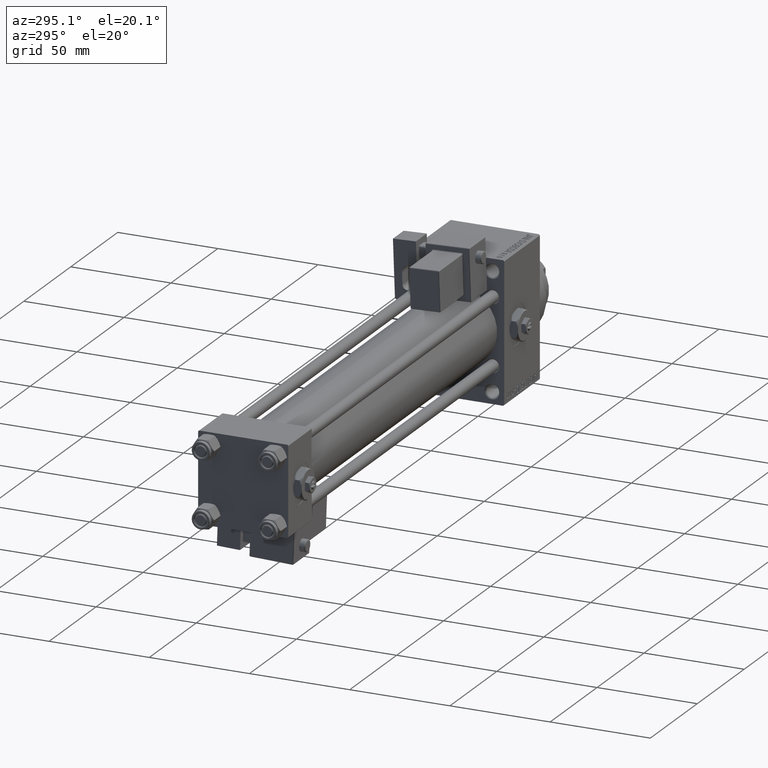
[diagram: clean part render]
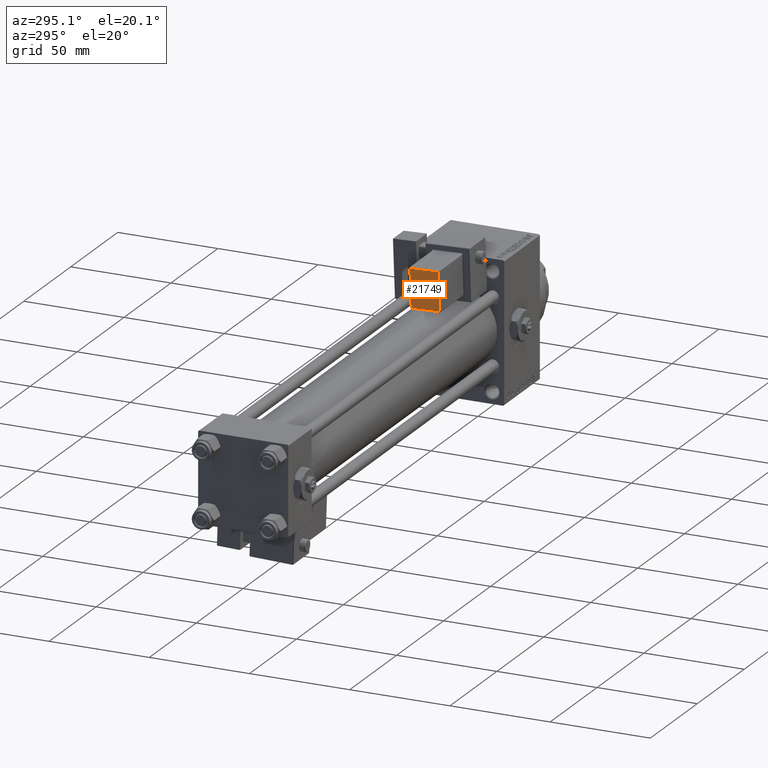
[diagram: same view with one face highlighted and labeled with its STEP entity id]
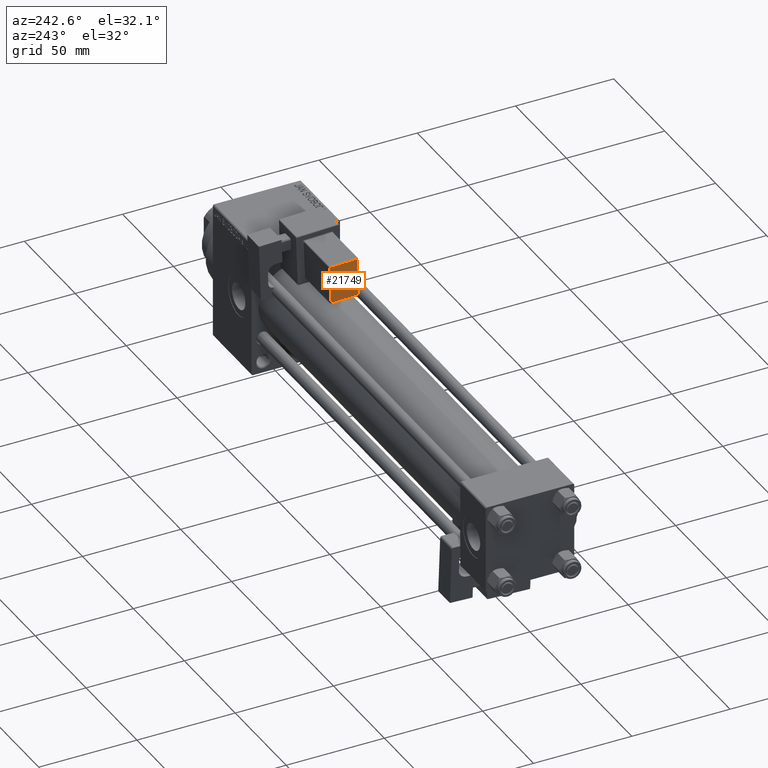
[diagram: same view with one face highlighted and labeled with its STEP entity id]
A machine part, auxiliary view. The second image highlights one B-rep face of the part: STEP entity #21749.
A second angle (auxiliary view) of the same face is appended — the face is thin or edge-on in the first view.
In plain terms, the highlighted planar face has unit normal (-1, -0, -0).
Its self-contained STEP definition (entity closure, byte-faithful):
#1070 = FACE_OUTER_BOUND ( 'NONE', #32534, .T. ) ;
#8380 = PLANE ( 'NONE',  #32879 ) ;
#9546 = DIRECTION ( 'NONE',  ( 2.006177025403372140E-32, -1.000000000000000000, -2.312964634635743450E-16 ) ) ;
#14584 = CARTESIAN_POINT ( 'NONE',  ( 33.74999999999999289, -15.75000000000000000, 22.00000000000000711 ) ) ;
#14735 = EDGE_CURVE ( 'NONE', #21920, #25783, #30178, .T. ) ;
#15312 = LINE ( 'NONE', #19986, #15407 ) ;
#15407 = VECTOR ( 'NONE', #43100, 1000.000000000000000 ) ;
#16674 = DIRECTION ( 'NONE',  ( 1.734723475976807341E-16, 0.000000000000000000, -1.000000000000000000 ) ) ;
#17330 = CARTESIAN_POINT ( 'NONE',  ( 33.75000000000000000, -15.25000000000000000, 2.500000000000008438 ) ) ;
#18359 = LINE ( 'NONE', #38377, #26818 ) ;
#18456 = CARTESIAN_POINT ( 'NONE',  ( 33.75000000000000000, -15.75000000000000000, 2.500000000000008438 ) ) ;
#19516 = EDGE_CURVE ( 'NONE', #20653, #21920, #49784, .T. ) ;
#19949 = CARTESIAN_POINT ( 'NONE',  ( 33.74999999999999289, -15.75000000000000000, 21.50000000000000355 ) ) ;
#19986 = CARTESIAN_POINT ( 'NONE',  ( 33.75000000000000000, -29.75000000000000000, 2.000000000000006661 ) ) ;
#20653 = VERTEX_POINT ( 'NONE', #36793 ) ;
#21567 = ORIENTED_EDGE ( 'NONE', *, *, #14735, .T. ) ;
#21749 = ADVANCED_FACE ( 'NONE', ( #1070 ), #8380, .T. ) ;
#21920 = VERTEX_POINT ( 'NONE', #18456 ) ;
#22053 = VECTOR ( 'NONE', #45378, 1000.000000000000000 ) ;
#25783 = VERTEX_POINT ( 'NONE', #19949 ) ;
#26818 = VECTOR ( 'NONE', #9546, 1000.000000000000000 ) ;
#29174 = ORIENTED_EDGE ( 'NONE', *, *, #19516, .T. ) ;
#29447 = EDGE_CURVE ( 'NONE', #25783, #40271, #18359, .T. ) ;
#30178 = LINE ( 'NONE', #14584, #48505 ) ;
#32534 = EDGE_LOOP ( 'NONE', ( #32578, #32988, #29174, #21567 ) ) ;
#32578 = ORIENTED_EDGE ( 'NONE', *, *, #29447, .T. ) ;
#32879 = AXIS2_PLACEMENT_3D ( 'NONE', #40062, #44203, #16674 ) ;
#32988 = ORIENTED_EDGE ( 'NONE', *, *, #37948, .T. ) ;
#34523 = CARTESIAN_POINT ( 'NONE',  ( 33.74999999999999289, -29.75000000000000000, 21.50000000000000000 ) ) ;
#36793 = CARTESIAN_POINT ( 'NONE',  ( 33.75000000000000000, -29.75000000000000000, 2.500000000000006661 ) ) ;
#37449 = DIRECTION ( 'NONE',  ( -1.734723475976807341E-16, 0.000000000000000000, 1.000000000000000000 ) ) ;
#37948 = EDGE_CURVE ( 'NONE', #40271, #20653, #15312, .T. ) ;
#38377 = CARTESIAN_POINT ( 'NONE',  ( 33.74999999999999289, -30.25000000000000000, 21.50000000000000000 ) ) ;
#40062 = CARTESIAN_POINT ( 'NONE',  ( 33.75000000000000000, -1.755404897227950513E-31, 4.853889726050490295E-15 ) ) ;
#40271 = VERTEX_POINT ( 'NONE', #34523 ) ;
#43100 = DIRECTION ( 'NONE',  ( 1.734723475976807341E-16, 0.000000000000000000, -1.000000000000000000 ) ) ;
#44203 = DIRECTION ( 'NONE',  ( 1.000000000000000000, -2.006177025403371045E-32, 1.734723475976807341E-16 ) ) ;
#45378 = DIRECTION ( 'NONE',  ( -5.473822126268816683E-48, 1.000000000000000000, 1.156482317317871725E-16 ) ) ;
#48505 = VECTOR ( 'NONE', #37449, 1000.000000000000000 ) ;
#49784 = LINE ( 'NONE', #17330, #22053 ) ;